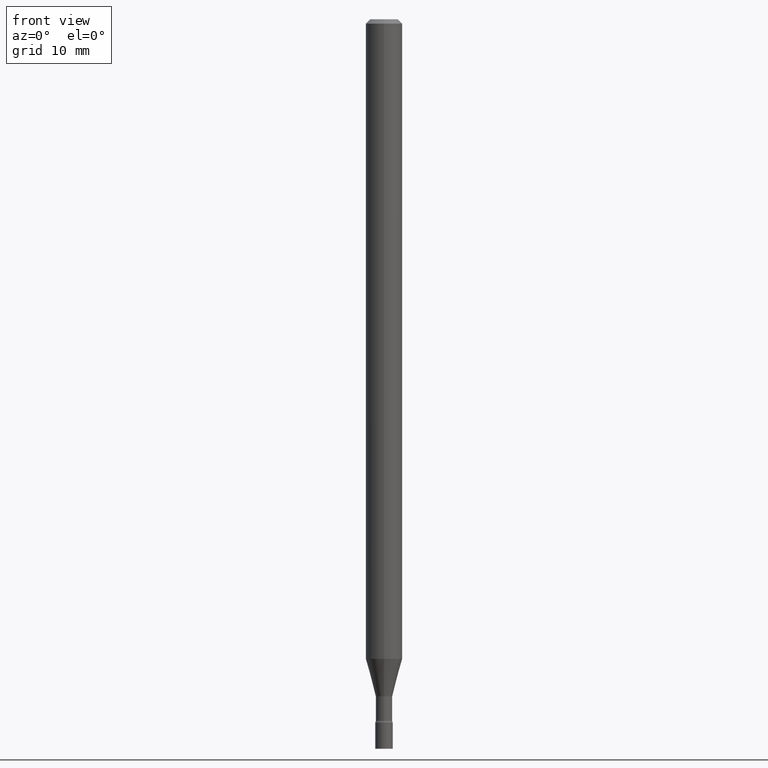
[diagram: clean part render]
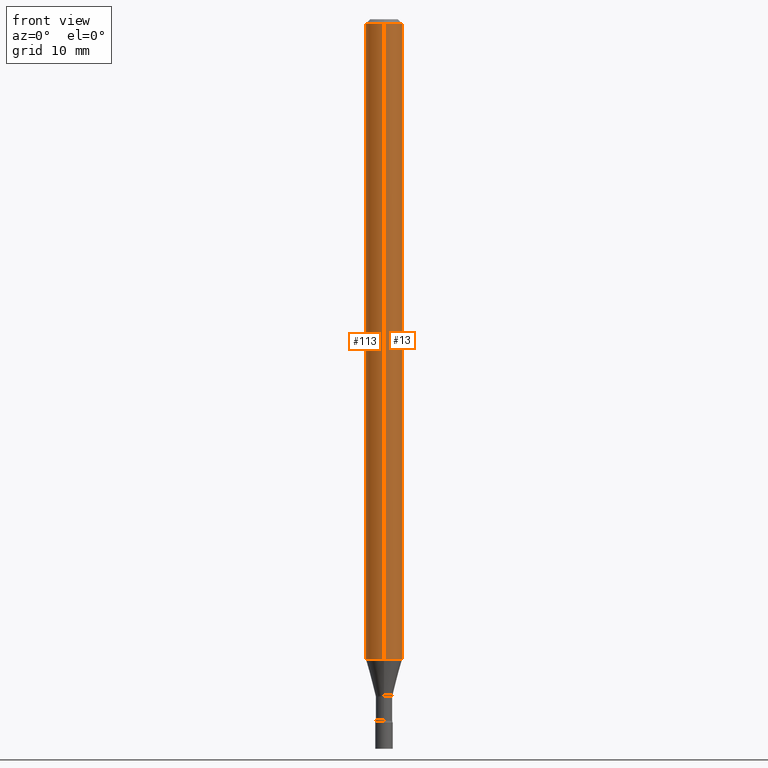
[diagram: same view with one multi-face feature highlighted, each face labeled with its STEP entity id]
A machine part, front view. The highlighted faces form ONE feature: a constant-radius fillet chain: 2 tangent blend faces with common blend radius 1.5875 mm. The faces share edges in the B-rep.
Their STEP definitions:
[1] entity #13 (Cylinder):
#10 = CARTESIAN_POINT ( 'NONE',  ( 4.440892098501165545E-16, 0.06249999999999995143, -0.01500000000000024751 ) ) ;
#13 = ADVANCED_FACE ( 'NONE', ( #344 ), #186, .T. ) ;
#21 = CIRCLE ( 'NONE', #114, 0.06250000000000000000 ) ;
#34 = CARTESIAN_POINT ( 'NONE',  ( -4.364351673553382241E-16, -0.06250000000000768829, -2.191990657300387557 ) ) ;
#67 = EDGE_CURVE ( 'NONE', #199, #355, #21, .T. ) ;
#71 = CARTESIAN_POINT ( 'NONE',  ( -4.364351673553916201E-16, -0.06250000000000000000, 2.182136716540508130E-16 ) ) ;
#95 = CARTESIAN_POINT ( 'NONE',  ( 4.440892098500625669E-16, 0.06250000000000000000, -2.182136716540508130E-16 ) ) ;
#108 = DIRECTION ( 'NONE',  ( -6.982962677686265922E-15, -1.000000000000000000, 4.370956789862821150E-15 ) ) ;
#114 = AXIS2_PLACEMENT_3D ( 'NONE', #181, #495, #108 ) ;
#117 = EDGE_CURVE ( 'NONE', #199, #311, #235, .T. ) ;
#181 = CARTESIAN_POINT ( 'NONE',  ( 5.360540583458003873E-29, -7.653157272974302616E-15, -2.191990657300388001 ) ) ;
#185 = EDGE_CURVE ( 'NONE', #355, #187, #372, .T. ) ;
#186 = CYLINDRICAL_SURFACE ( 'NONE', #430, 0.06250000000000000000 ) ;
#187 = VERTEX_POINT ( 'NONE', #10 ) ;
#188 = DIRECTION ( 'NONE',  ( -2.445512514209316848E-29, 3.491418746464813403E-15, 1.000000000000000000 ) ) ;
#191 = CARTESIAN_POINT ( 'NONE',  ( 0.000000000000000000, 0.000000000000000000, 0.000000000000000000 ) ) ;
#199 = VERTEX_POINT ( 'NONE', #34 ) ;
#235 = LINE ( 'NONE', #71, #483 ) ;
#245 = CARTESIAN_POINT ( 'NONE',  ( 4.440892098501159629E-16, 0.06249999999999233252, -2.191990657300388001 ) ) ;
#311 = VERTEX_POINT ( 'NONE', #520 ) ;
#321 = DIRECTION ( 'NONE',  ( -6.982962677686265922E-15, -1.000000000000000000, 3.483106191921935554E-15 ) ) ;
#342 = EDGE_CURVE ( 'NONE', #311, #187, #389, .T. ) ;
#343 = VECTOR ( 'NONE', #410, 39.37007874015748143 ) ;
#344 = FACE_OUTER_BOUND ( 'NONE', #481, .T. ) ;
#355 = VERTEX_POINT ( 'NONE', #245 ) ;
#357 = CARTESIAN_POINT ( 'NONE',  ( 3.668268771313982646E-31, -5.237128119697230606E-17, -0.01500000000000003067 ) ) ;
#372 = LINE ( 'NONE', #95, #343 ) ;
#384 = ORIENTED_EDGE ( 'NONE', *, *, #342, .F. ) ;
#385 = DIRECTION ( 'NONE',  ( -6.982962677686265922E-15, -1.000000000000000000, 3.491418746464813009E-15 ) ) ;
#389 = CIRCLE ( 'NONE', #461, 0.06250000000000000000 ) ;
#390 = DIRECTION ( 'NONE',  ( -2.445512514209317128E-29, 3.491418746464813797E-15, 1.000000000000000000 ) ) ;
#410 = DIRECTION ( 'NONE',  ( -2.445512514209317128E-29, 3.491418746464813797E-15, 1.000000000000000000 ) ) ;
#424 = ORIENTED_EDGE ( 'NONE', *, *, #117, .F. ) ;
#430 = AXIS2_PLACEMENT_3D ( 'NONE', #191, #188, #385 ) ;
#445 = ORIENTED_EDGE ( 'NONE', *, *, #185, .T. ) ;
#461 = AXIS2_PLACEMENT_3D ( 'NONE', #357, #506, #321 ) ;
#481 = EDGE_LOOP ( 'NONE', ( #485, #445, #384, #424 ) ) ;
#483 = VECTOR ( 'NONE', #390, 39.37007874015748143 ) ;
#485 = ORIENTED_EDGE ( 'NONE', *, *, #67, .T. ) ;
#495 = DIRECTION ( 'NONE',  ( -2.445512514209316848E-29, 3.491418746464813403E-15, 1.000000000000000000 ) ) ;
#506 = DIRECTION ( 'NONE',  ( -2.445512514209316848E-29, 3.491418746464813403E-15, 1.000000000000000000 ) ) ;
#520 = CARTESIAN_POINT ( 'NONE',  ( -4.364351673553912750E-16, -0.06250000000000005551, -0.01499999999999981209 ) ) ;
[2] entity #113 (Cylinder):
#1 = ORIENTED_EDGE ( 'NONE', *, *, #349, .T. ) ;
#10 = CARTESIAN_POINT ( 'NONE',  ( 4.440892098501165545E-16, 0.06249999999999995143, -0.01500000000000024751 ) ) ;
#28 = AXIS2_PLACEMENT_3D ( 'NONE', #509, #111, #434 ) ;
#30 = EDGE_LOOP ( 'NONE', ( #325, #1, #460, #176 ) ) ;
#34 = CARTESIAN_POINT ( 'NONE',  ( -4.364351673553382241E-16, -0.06250000000000768829, -2.191990657300387557 ) ) ;
#65 = AXIS2_PLACEMENT_3D ( 'NONE', #480, #313, #440 ) ;
#71 = CARTESIAN_POINT ( 'NONE',  ( -4.364351673553916201E-16, -0.06250000000000000000, 2.182136716540508130E-16 ) ) ;
#95 = CARTESIAN_POINT ( 'NONE',  ( 4.440892098500625669E-16, 0.06250000000000000000, -2.182136716540508130E-16 ) ) ;
#111 = DIRECTION ( 'NONE',  ( -2.445512514209316848E-29, 3.491418746464813403E-15, 1.000000000000000000 ) ) ;
#113 = ADVANCED_FACE ( 'NONE', ( #147 ), #302, .T. ) ;
#117 = EDGE_CURVE ( 'NONE', #199, #311, #235, .T. ) ;
#147 = FACE_OUTER_BOUND ( 'NONE', #30, .T. ) ;
#156 = DIRECTION ( 'NONE',  ( -2.445512514209316848E-29, 3.491418746464813403E-15, 1.000000000000000000 ) ) ;
#176 = ORIENTED_EDGE ( 'NONE', *, *, #231, .F. ) ;
#185 = EDGE_CURVE ( 'NONE', #355, #187, #372, .T. ) ;
#187 = VERTEX_POINT ( 'NONE', #10 ) ;
#199 = VERTEX_POINT ( 'NONE', #34 ) ;
#200 = AXIS2_PLACEMENT_3D ( 'NONE', #284, #156, #289 ) ;
#231 = EDGE_CURVE ( 'NONE', #187, #311, #312, .T. ) ;
#235 = LINE ( 'NONE', #71, #483 ) ;
#245 = CARTESIAN_POINT ( 'NONE',  ( 4.440892098501159629E-16, 0.06249999999999233252, -2.191990657300388001 ) ) ;
#284 = CARTESIAN_POINT ( 'NONE',  ( 5.360540583458003873E-29, -7.653157272974302616E-15, -2.191990657300388001 ) ) ;
#289 = DIRECTION ( 'NONE',  ( -6.982962677686265922E-15, -1.000000000000000000, 4.370956789862821150E-15 ) ) ;
#302 = CYLINDRICAL_SURFACE ( 'NONE', #28, 0.06250000000000000000 ) ;
#311 = VERTEX_POINT ( 'NONE', #520 ) ;
#312 = CIRCLE ( 'NONE', #65, 0.06250000000000000000 ) ;
#313 = DIRECTION ( 'NONE',  ( -2.445512514209316848E-29, 3.491418746464813403E-15, 1.000000000000000000 ) ) ;
#325 = ORIENTED_EDGE ( 'NONE', *, *, #185, .F. ) ;
#343 = VECTOR ( 'NONE', #410, 39.37007874015748143 ) ;
#349 = EDGE_CURVE ( 'NONE', #355, #199, #423, .T. ) ;
#355 = VERTEX_POINT ( 'NONE', #245 ) ;
#372 = LINE ( 'NONE', #95, #343 ) ;
#390 = DIRECTION ( 'NONE',  ( -2.445512514209317128E-29, 3.491418746464813797E-15, 1.000000000000000000 ) ) ;
#410 = DIRECTION ( 'NONE',  ( -2.445512514209317128E-29, 3.491418746464813797E-15, 1.000000000000000000 ) ) ;
#423 = CIRCLE ( 'NONE', #200, 0.06250000000000000000 ) ;
#434 = DIRECTION ( 'NONE',  ( -6.982962677686265922E-15, -1.000000000000000000, 3.491418746464813009E-15 ) ) ;
#440 = DIRECTION ( 'NONE',  ( -6.982962677686265922E-15, -1.000000000000000000, 3.483106191921935554E-15 ) ) ;
#460 = ORIENTED_EDGE ( 'NONE', *, *, #117, .T. ) ;
#480 = CARTESIAN_POINT ( 'NONE',  ( 3.668268771313982646E-31, -5.237128119697230606E-17, -0.01500000000000003067 ) ) ;
#483 = VECTOR ( 'NONE', #390, 39.37007874015748143 ) ;
#509 = CARTESIAN_POINT ( 'NONE',  ( 0.000000000000000000, 0.000000000000000000, 0.000000000000000000 ) ) ;
#520 = CARTESIAN_POINT ( 'NONE',  ( -4.364351673553912750E-16, -0.06250000000000005551, -0.01499999999999981209 ) ) ;